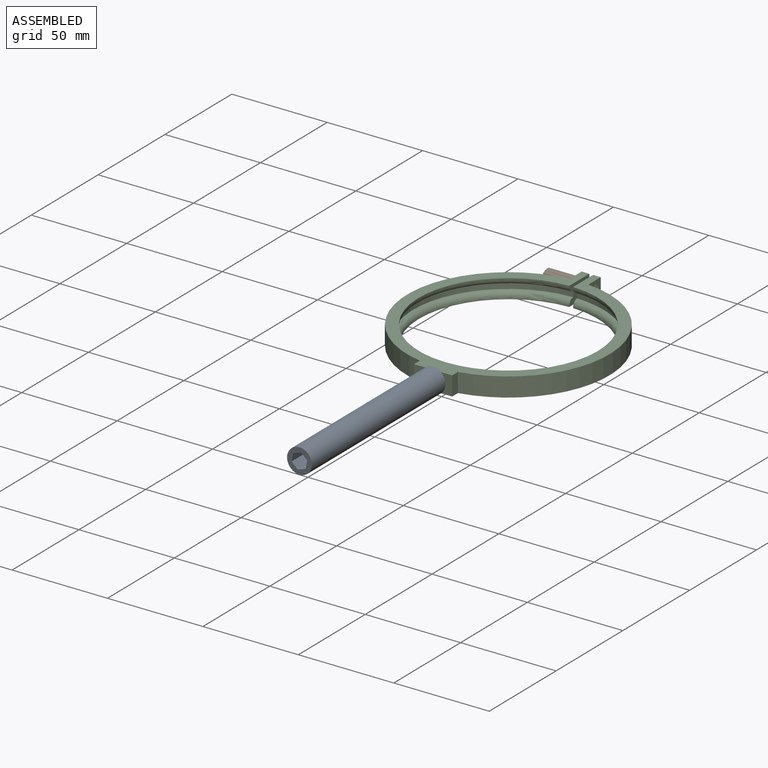
[diagram: assembled view]
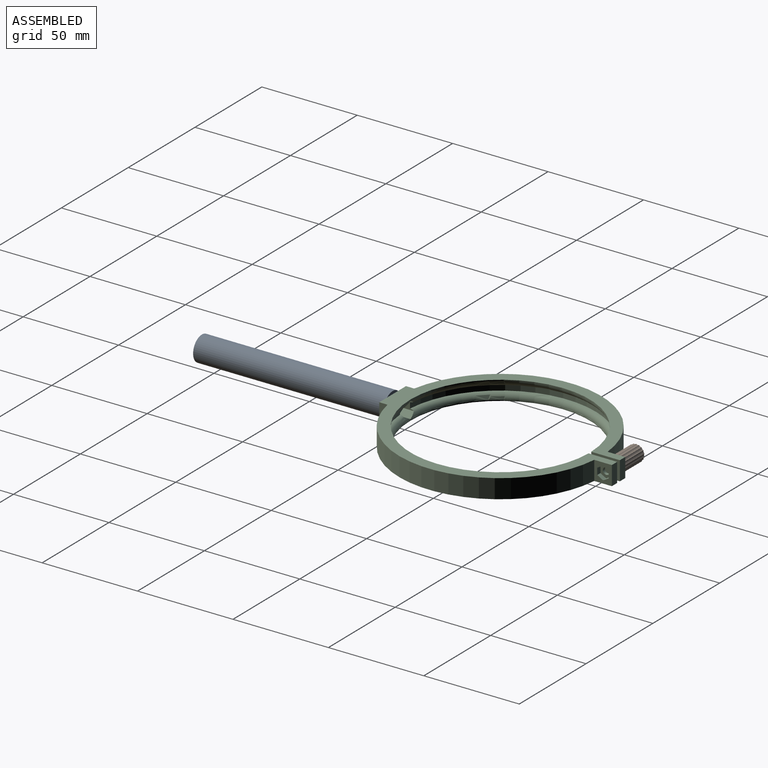
[diagram: assembled view, second angle]
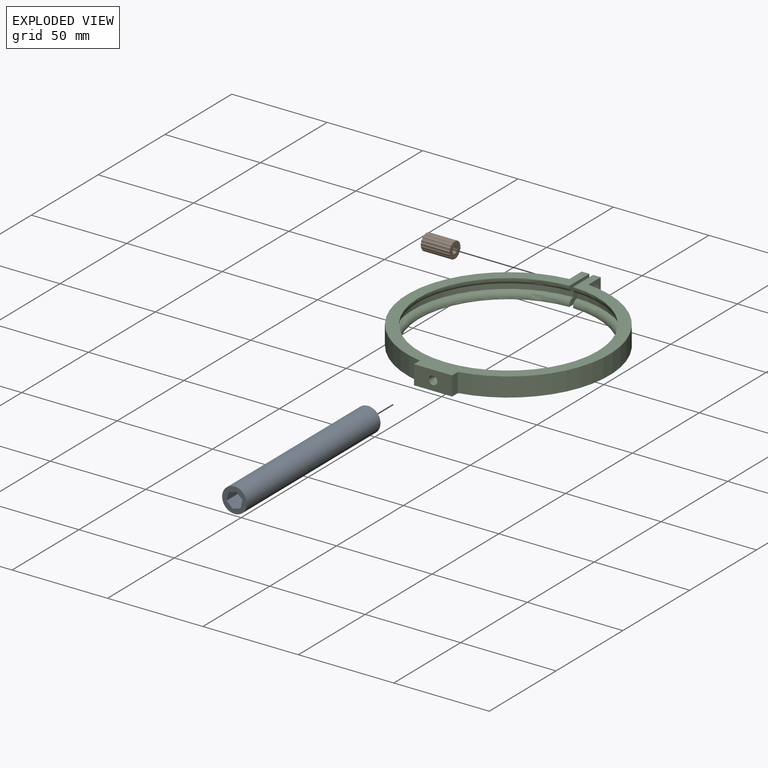
[diagram: exploded view]
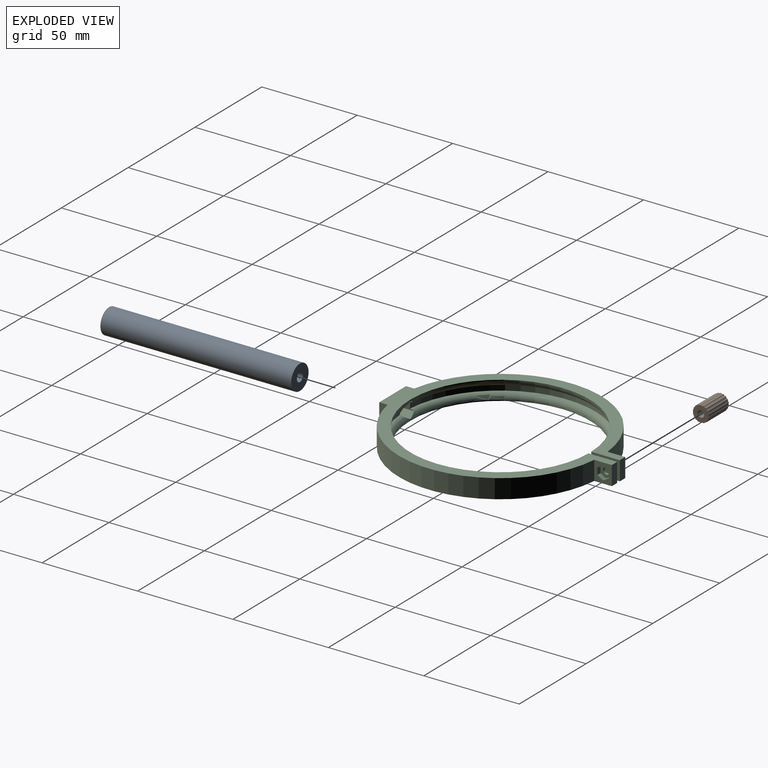
[diagram: exploded view, second angle]
ASSEMBLY  parts=3 mates=2
PART A: 11 faces, bbox 13x13x100 mm
  f0: plane 13x13mm, normal (0,0,-1), area 84mm2, adj f1,f4,f5,f6,f7,f8,f9
  f1: cylinder r=6.5mm len=100mm, axis (0,0,-1), area 4084.1mm2, adj f0,f3
  f2: cylinder r=2.25mm len=10mm, axis (0,0,-1), area 141.4mm2, adj f3,f10
  f3: plane 13x13mm, normal (0,0,1), area 116.8mm2, adj f1,f2
  f4: plane 90x4.12mm, normal (-0.31,-0.95,0), area 389.7mm2, adj f0,f5,f9,f10
  f5: plane 90x3.21mm, normal (0.67,-0.74,0), area 389.7mm2, adj f0,f4,f6,f10
  f6: plane 90x4.23mm, normal (0.98,0.21,0), area 389.7mm2, adj f0,f5,f7,f10
  f7: plane 90x4.12mm, normal (0.31,0.95,0), area 389.7mm2, adj f0,f6,f8,f10
  f8: plane 90x3.21mm, normal (-0.67,0.74,0), area 389.7mm2, adj f0,f7,f9,f10
  f9: plane 90x4.23mm, normal (-0.98,-0.21,0), area 389.7mm2, adj f0,f4,f8,f10
  f10: plane 8.46x8.25mm, normal (0,0,-1), area 32.8mm2, adj f2,f4,f5,f6,f7,f8,f9
PART B: 28 faces, bbox 8.6x8.5x15 mm
  f0: plane 8.59x8.49mm, normal (0,0,-1), area 22.2mm2, adj f1,f2,f3,f4,f5,f6,f7,f8
  f1: cylinder r=1.54mm len=15mm, axis (0,0,-1), area 23.4mm2, adj f0,f2,f18,f20
  f2: cylinder r=1.54mm len=15mm, axis (0,0,-1), area 23.4mm2, adj f0,f1,f3,f20
  f3: cylinder r=1.54mm len=15mm, axis (0,0,-1), area 23.4mm2, adj f0,f2,f4,f20
  f4: cylinder r=1.54mm len=15mm, axis (0,0,-1), area 23.4mm2, adj f0,f3,f5,f20
  f5: cylinder r=1.54mm len=15mm, axis (0,0,-1), area 23.4mm2, adj f0,f4,f6,f20
  f6: cylinder r=1.54mm len=15mm, axis (0,0,-1), area 23.4mm2, adj f0,f5,f7,f20
  f7: cylinder r=1.54mm len=15mm, axis (0,0,-1), area 23.4mm2, adj f0,f6,f8,f20
  f8: cylinder r=1.54mm len=15mm, axis (0,0,-1), area 23.4mm2, adj f0,f7,f9,f20
  f9: cylinder r=1.54mm len=15mm, axis (0,0,-1), area 23.4mm2, adj f0,f8,f10,f20
  f10: cylinder r=1.54mm len=15mm, axis (0,0,-1), area 23.4mm2, adj f0,f9,f11,f20
  f11: cylinder r=1.54mm len=15mm, axis (0,0,-1), area 23.4mm2, adj f0,f10,f12,f20
  f12: cylinder r=1.54mm len=15mm, axis (0,0,-1), area 23.4mm2, adj f0,f11,f13,f20
  f13: cylinder r=1.54mm len=15mm, axis (0,0,-1), area 23.4mm2, adj f0,f12,f14,f20
  f14: cylinder r=1.54mm len=15mm, axis (0,0,-1), area 23.4mm2, adj f0,f13,f15,f20
  f15: cylinder r=1.54mm len=15mm, axis (0,0,-1), area 23.4mm2, adj f0,f14,f16,f20
  f16: cylinder r=1.54mm len=15mm, axis (0,0,-1), area 23.4mm2, adj f0,f15,f17,f20
  f17: cylinder r=1.54mm len=15mm, axis (0,0,-1), area 23.4mm2, adj f0,f16,f18,f20
  f18: cylinder r=1.54mm len=15mm, axis (0,0,-1), area 23.4mm2, adj f0,f1,f17,f20
  f19: cylinder r=1.75mm len=5mm, axis (0,0,-1), area 55mm2, adj f20,f27
  f20: plane 8.59x8.49mm, normal (0,0,1), area 43.7mm2, adj f1,f2,f3,f4,f5,f6,f7,f8
  f21: plane 10x3.05mm, normal (-0.48,-0.88,0), area 34.6mm2, adj f0,f22,f26,f27
  f22: plane 10x2.95mm, normal (0.52,-0.85,0), area 34.6mm2, adj f0,f21,f23,f27
  f23: plane 10x3.46mm, normal (1,0.03,0), area 34.6mm2, adj f0,f22,f24,f27
  f24: plane 10x3.05mm, normal (0.48,0.88,0), area 34.6mm2, adj f0,f23,f25,f27
  f25: plane 10x2.95mm, normal (-0.52,0.85,0), area 34.6mm2, adj f0,f24,f26,f27
  f26: plane 10x3.46mm, normal (-1,-0.03,0), area 34.6mm2, adj f0,f21,f25,f27
  f27: plane 6.93x6.1mm, normal (0,0,-1), area 21.6mm2, adj f19,f21,f22,f23,f24,f25,f26
PART C: 36 faces, bbox 112.9x118.5x13.3 mm
  f0: cylinder r=50mm len=99.85mm, axis (0,0,-1), area 457mm2, adj f10,f18,f19,f34
  f1: cylinder r=1.75mm len=3.5mm, axis (1,0,0), area 17.6mm2, adj f10,f27
  f2: cylinder r=50mm len=99.85mm, axis (0,0,-1), area 457mm2, adj f11,f18,f19,f31
  f3: cylinder r=53mm len=104.81mm, axis (0,0,-1), area 1514.4mm2, adj f4,f13,f14,f15
  f4: plane 10x4.31mm, normal (-1,0,0), area 43.1mm2, adj f3,f5,f14,f15
  f5: plane 20x10mm, normal (0,-1,0), area 184.1mm2, adj f4,f6,f14,f15,f28
  f6: plane 10x4.31mm, normal (1,0,0), area 43.1mm2, adj f5,f7,f14,f15
  f7: cylinder r=53mm len=104.81mm, axis (0,0,-1), area 1514.4mm2, adj f6,f8,f14,f15
  f8: plane 10x9.24mm, normal (1,0,0), area 61.2mm2, adj f7,f9,f14,f15,f21,f22,f23,f24
  f9: plane 10x4mm, normal (0,1,0), area 40mm2, adj f8,f10,f14,f15
  f10: plane 15.04x10.03mm, normal (-1,0,0), area 127.6mm2, adj f0,f1,f9,f14,f15,f16,f17,f18
  f11: plane 15.04x10.03mm, normal (1,0,0), area 127.6mm2, adj f2,f12,f14,f15,f16,f17,f18,f19
  f12: plane 10x4mm, normal (0,1,0), area 40mm2, adj f11,f13,f14,f15
  f13: plane 10x9.24mm, normal (-1,0,0), area 82.7mm2, adj f3,f12,f14,f15,f20
  f14: plane 118.36x106mm, normal (0,0,1), area 2019.2mm2, adj f3,f4,f5,f6,f7,f8,f9,f10
  f15: plane 118.36x106mm, normal (0,0,-1), area 2019.2mm2, adj f3,f4,f5,f6,f7,f8,f9,f10
  f16: cylinder r=47mm len=94mm, axis (0,0,-1), area 146.7mm2, adj f10,f11,f15,f19
  f17: cylinder r=47mm len=94mm, axis (0,0,-1), area 146.7mm2, adj f10,f11,f14,f18
  f18: torus R=50mm, axis (0,0,1), area 1389.2mm2, adj f0,f2,f10,f11,f17,f29,f30,f31
  f19: torus R=50mm, axis (0,0,1), area 1389.2mm2, adj f0,f2,f10,f11,f16,f31,f32,f33
  f20: cylinder r=1.75mm len=4mm, axis (1,0,0), area 44mm2, adj f11,f13
  f21: plane 3x2.4mm, normal (0,-0.5,-0.87), area 8.3mm2, adj f8,f22,f26,f27
  f22: plane 3x2.4mm, normal (0,0.5,-0.87), area 8.3mm2, adj f8,f21,f23,f27
  f23: plane 3.46x2.4mm, normal (0,1,0), area 8.3mm2, adj f8,f22,f24,f27
  f24: plane 3x2.4mm, normal (0,0.5,0.87), area 8.3mm2, adj f8,f23,f25,f27
  f25: plane 3x2.4mm, normal (0,-0.5,0.87), area 8.3mm2, adj f8,f24,f26,f27
  f26: plane 3.46x2.4mm, normal (0,-1,0), area 8.3mm2, adj f8,f21,f25,f27
  f27: plane 6.93x6mm, normal (1,0,0), area 21.6mm2, adj f1,f21,f22,f23,f24,f25,f26
  f28: cylinder r=2.25mm len=4.5mm, axis (0,-1,0), area 42.4mm2, adj f5,f35
  f29: plane 6.35x3.75mm, normal (-0.5,0,-0.87), area 26.2mm2, adj f18,f30,f34,f35
  f30: plane 6.35x3.75mm, normal (0.5,0,-0.87), area 26.2mm2, adj f18,f29,f31,f35
  f31: plane 5.4x4.34mm, normal (1,0,0), area 16.9mm2, adj f2,f18,f19,f30,f32,f35
  f32: plane 6.36x3.75mm, normal (0.5,0,0.87), area 26.2mm2, adj f19,f31,f33,f35
  f33: plane 6.36x3.75mm, normal (-0.5,0,0.87), area 26.2mm2, adj f19,f32,f34,f35
  f34: plane 5.4x4.34mm, normal (-1,0,0), area 16.9mm2, adj f0,f18,f19,f29,f33,f35
  f35: plane 8.66x7.5mm, normal (0,1,0), area 32.8mm2, adj f28,f29,f30,f31,f32,f33,f34
PLACE A rot(axis=(-1,0,0),90deg) t=(0,-156.36,5)mm
PLACE B rot(axis=(0,1,0),90deg) t=(-20,57.38,5)mm
PLACE C at identity
MATE fastened B.f19 <-> C.f1  axis (-1,0,0) through (-5,57.38,5)mm
MATE fastened A.f2 <-> C.f28  axis (0,1,0) through (0,-56.36,5)mm
